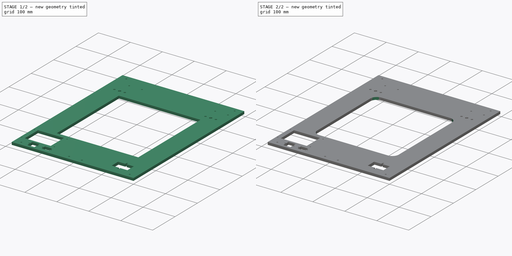
[diagram: build sequence overview — one tinted view per stage of 2, left to right]
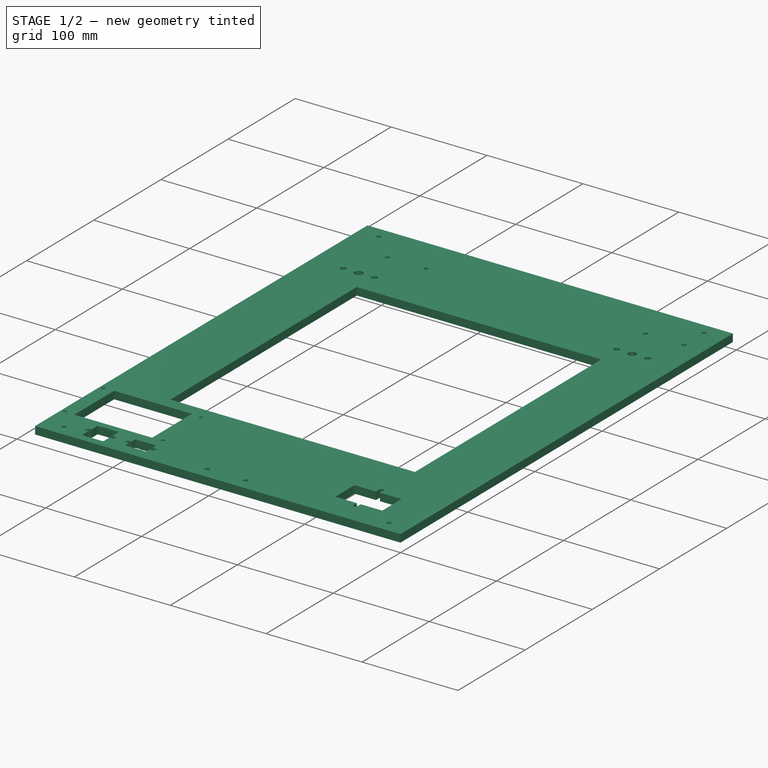
[diagram: stage 1 of 2 — iso view after this stage's code; geometry added in this stage tinted green]
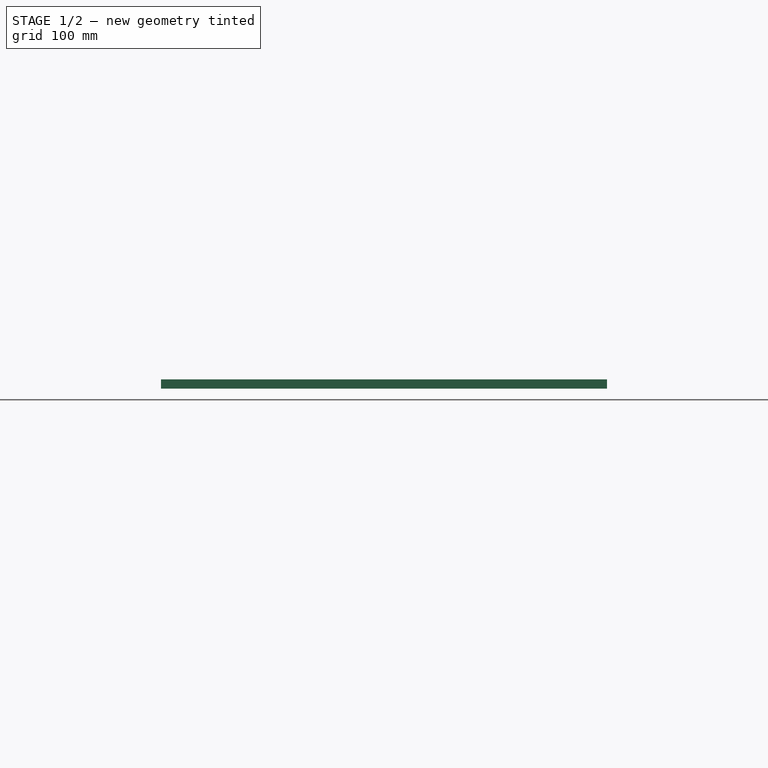
[diagram: stage 1 of 2 — front view after this stage's code; geometry added in this stage tinted green]
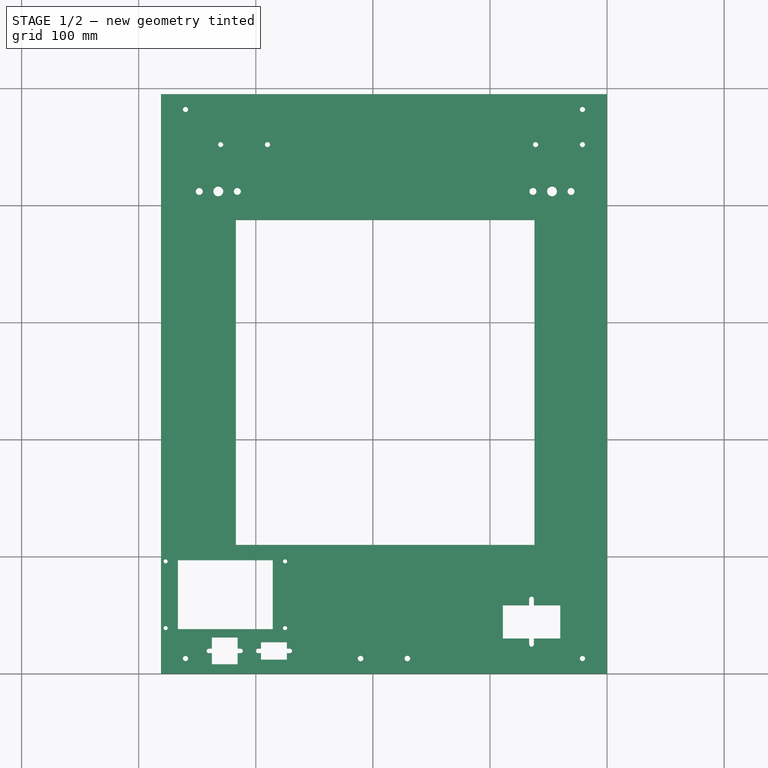
[diagram: stage 1 of 2 — top view after this stage's code; geometry added in this stage tinted green]
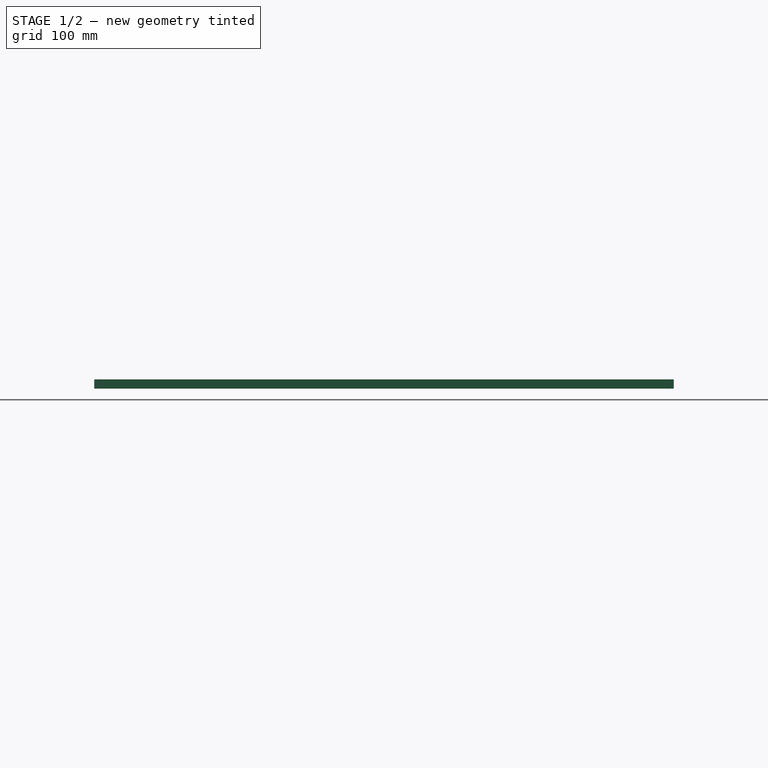
[diagram: stage 1 of 2 — right view after this stage's code; geometry added in this stage tinted green]
FCSTD DOCUMENT  (FreeCAD 0.16R6706 (Git))
Label: Frente
License: All rights reserved
LicenseURL: http://en.wikipedia.org/wiki/All_rights_reserved
objects: Path::FeaturePython×28, Sketcher::SketchObject×1, PartDesign::Pad×1, PartDesign::Fillet×1, Path::FeatureCompoundPython×1
note: 4 computed .brp shape members not serialized (recipe doc carries the construction recipe); baked Part::Feature solids carry a one-line shape summary decoded from their .brp

FEATURE [Sketcher::SketchObject] Sketch
  sketch-geometry (91):
    g0: LineSegment StartX=-381 StartY=495 StartZ=0 EndX=0 EndY=495 EndZ=0
    g1: LineSegment StartX=0 StartY=495 StartZ=0 EndX=0 EndY=0 EndZ=0
    g2: LineSegment StartX=-381 StartY=0 StartZ=0 EndX=-381 EndY=495 EndZ=0
    g3: LineSegment [constr] StartX=-332 StartY=452 StartZ=0 EndX=-332 EndY=412 EndZ=0
    g4: LineSegment [constr] StartX=-348.25 StartY=412 StartZ=0 EndX=-315.75 EndY=412 EndZ=0
    g5: Circle CenterX=-348.25 CenterY=412 CenterZ=0 NormalX=0 NormalY=0 NormalZ=1 Radius=3
    g6: Circle CenterX=-315.75 CenterY=412 CenterZ=0 NormalX=0 NormalY=0 NormalZ=1 Radius=3
    g7: Circle CenterX=-332 CenterY=412 CenterZ=0 NormalX=0 NormalY=0 NormalZ=1 Radius=4.2
    g8: LineSegment [constr] StartX=-332 StartY=412 StartZ=0 EndX=-47 EndY=412 EndZ=0
    g9: LineSegment [constr] StartX=-63.25 StartY=412 StartZ=0 EndX=-30.75 EndY=412 EndZ=0
    g10: Circle CenterX=-63.25 CenterY=412 CenterZ=0 NormalX=0 NormalY=0 NormalZ=1 Radius=3
    g11: Circle CenterX=-30.75 CenterY=412 CenterZ=0 NormalX=0 NormalY=0 NormalZ=1 Radius=3
    g12: Circle CenterX=-47 CenterY=412 CenterZ=0 NormalX=0 NormalY=0 NormalZ=1 Radius=4.2
    g13: LineSegment [constr] StartX=-330 StartY=452 StartZ=0 EndX=-290 EndY=452 EndZ=0
    g14: Circle CenterX=-330 CenterY=452 CenterZ=0 NormalX=0 NormalY=0 NormalZ=1 Radius=2.2
    g15: Circle CenterX=-290 CenterY=452 CenterZ=0 NormalX=0 NormalY=0 NormalZ=1 Radius=2.2
    g16: LineSegment [constr] StartX=-61 StartY=452 StartZ=0 EndX=-21 EndY=452 EndZ=0
    g17: Circle CenterX=-61 CenterY=452 CenterZ=0 NormalX=0 NormalY=0 NormalZ=1 Radius=2.2
    g18: Circle CenterX=-21 CenterY=452 CenterZ=0 NormalX=0 NormalY=0 NormalZ=1 Radius=2.2
    g19: Circle CenterX=-21 CenterY=482 CenterZ=0 NormalX=0 NormalY=0 NormalZ=1 Radius=2.25
    g20: LineSegment StartX=-317 StartY=387.586 StartZ=0 EndX=-62 EndY=387.586 EndZ=0
    g21: LineSegment StartX=-62 StartY=387.586 StartZ=0 EndX=-62 EndY=110 EndZ=0
    g22: LineSegment StartX=-62 StartY=110 StartZ=0 EndX=-317 EndY=110 EndZ=0
    g23: LineSegment StartX=-317 StartY=110 StartZ=0 EndX=-317 EndY=387.586 EndZ=0
    g24: LineSegment [constr] StartX=-360 StartY=482 StartZ=0 EndX=-21 EndY=482 EndZ=0
    g25: LineSegment [constr] StartX=-21 StartY=482 StartZ=0 EndX=-21 EndY=13 EndZ=0
    g26: LineSegment [constr] StartX=-21 StartY=13 StartZ=0 EndX=-360 EndY=13 EndZ=0
    g27: LineSegment [constr] StartX=-360 StartY=13 StartZ=0 EndX=-360 EndY=482 EndZ=0
    g28: Circle CenterX=-360 CenterY=482 CenterZ=0 NormalX=0 NormalY=0 NormalZ=1 Radius=2.25
    g29: Circle CenterX=-21 CenterY=13 CenterZ=0 NormalX=0 NormalY=0 NormalZ=1 Radius=2.25
    g30: Circle CenterX=-360 CenterY=13 CenterZ=0 NormalX=0 NormalY=0 NormalZ=1 Radius=2.25
    g31: LineSegment [constr] StartX=-381 StartY=100 StartZ=0 EndX=-271 EndY=100 EndZ=0
    g32: LineSegment [constr] StartX=-271 StartY=100 StartZ=0 EndX=-271 EndY=35 EndZ=0
    g33: LineSegment [constr] StartX=-271 StartY=35 StartZ=0 EndX=-381 EndY=35 EndZ=0
    g34: LineSegment [constr] StartX=-381 StartY=35 StartZ=0 EndX=-381 EndY=100 EndZ=0
    g35: GeomPoint [constr] X=-326 Y=67.5 Z=0
    g36: LineSegment [constr] StartX=-377 StartY=96 StartZ=0 EndX=-275 EndY=96 EndZ=0
    g37: LineSegment [constr] StartX=-275 StartY=96 StartZ=0 EndX=-275 EndY=39 EndZ=0
    g38: LineSegment [constr] StartX=-275 StartY=39 StartZ=0 EndX=-377 EndY=39 EndZ=0
    g39: LineSegment [constr] StartX=-377 StartY=39 StartZ=0 EndX=-377 EndY=96 EndZ=0
    g40: Circle CenterX=-377 CenterY=96 CenterZ=0 NormalX=0 NormalY=0 NormalZ=1 Radius=1.8
    g41: Circle CenterX=-275 CenterY=96 CenterZ=0 NormalX=0 NormalY=0 NormalZ=1 Radius=1.8
    g42: Circle CenterX=-275 CenterY=39 CenterZ=0 NormalX=0 NormalY=0 NormalZ=1 Radius=1.8
    g43: Circle CenterX=-377 CenterY=39 CenterZ=0 NormalX=0 NormalY=0 NormalZ=1 Radius=1.8
    g44: LineSegment StartX=-366.5 StartY=97 StartZ=0 EndX=-285.5 EndY=97 EndZ=0
    g45: LineSegment StartX=-285.5 StartY=97 StartZ=0 EndX=-285.5 EndY=38 EndZ=0
    g46: LineSegment StartX=-285.5 StartY=38 StartZ=0 EndX=-366.5 EndY=38 EndZ=0
    g47: LineSegment StartX=-366.5 StartY=38 StartZ=0 EndX=-366.5 EndY=97 EndZ=0
    g48: LineSegment StartX=0 StartY=0 StartZ=0 EndX=-381 EndY=0 EndZ=0
    g49: LineSegment StartX=-337.5 StartY=31 StartZ=0 EndX=-315.5 EndY=31 EndZ=0
    g50: LineSegment StartX=-315.5 StartY=31 StartZ=0 EndX=-315.5 EndY=21.5 EndZ=0
    g51: LineSegment StartX=-315.5 StartY=8 StartZ=0 EndX=-337.5 EndY=8 EndZ=0
    g52: LineSegment StartX=-337.5 StartY=8 StartZ=0 EndX=-337.5 EndY=17.5 EndZ=0
    g53: LineSegment [constr] StartX=-340 StartY=19.5 StartZ=0 EndX=-313 EndY=19.5 EndZ=0
    g54: GeomPoint [constr] X=-326.5 Y=19.5 Z=0
    g55: LineSegment StartX=-295.5 StartY=27 StartZ=0 EndX=-273.5 EndY=27 EndZ=0
    g56: LineSegment StartX=-273.5 StartY=27 StartZ=0 EndX=-273.5 EndY=21.5 EndZ=0
    g57: LineSegment StartX=-273.5 StartY=12 StartZ=0 EndX=-295.5 EndY=12 EndZ=0
    g58: LineSegment StartX=-295.5 StartY=12 StartZ=0 EndX=-295.5 EndY=17.5 EndZ=0
    g59: GeomPoint [constr] X=-284.5 Y=19.5 Z=0
    g60: LineSegment [constr] StartX=-298 StartY=19.5 StartZ=0 EndX=-271 EndY=19.5 EndZ=0
    g61: LineSegment StartX=-89 StartY=58.5 StartZ=0 EndX=-66.5 EndY=58.5 EndZ=0
    g62: LineSegment StartX=-40 StartY=58.5 StartZ=0 EndX=-40 EndY=30 EndZ=0
    g63: LineSegment StartX=-40 StartY=30 StartZ=0 EndX=-62.5 EndY=30 EndZ=0
    g64: LineSegment StartX=-89 StartY=30 StartZ=0 EndX=-89 EndY=58.5 EndZ=0
    g65: ArcOfCircle CenterX=-64.5 CenterY=64 CenterZ=0 NormalX=0 NormalY=0 NormalZ=1 Radius=2 StartAngle=0 EndAngle=3.14159
    g66: ArcOfCircle CenterX=-64.5 CenterY=25 CenterZ=0 NormalX=0 NormalY=0 NormalZ=1 Radius=2 StartAngle=3.14159 EndAngle=6.28319
    g67: LineSegment StartX=-66.5 StartY=64 StartZ=0 EndX=-66.5 EndY=58.5 EndZ=0
    g68: LineSegment StartX=-62.5 StartY=64 StartZ=0 EndX=-62.5 EndY=58.5 EndZ=0
    g69: LineSegment StartX=-62.5 StartY=58.5 StartZ=0 EndX=-40 EndY=58.5 EndZ=0
    g70: LineSegment StartX=-66.5 StartY=30 StartZ=0 EndX=-89 EndY=30 EndZ=0
    g71: LineSegment StartX=-66.5 StartY=30 StartZ=0 EndX=-66.5 EndY=25 EndZ=0
    g72: LineSegment StartX=-62.5 StartY=30 StartZ=0 EndX=-62.5 EndY=25 EndZ=0
    g73: ArcOfCircle CenterX=-340 CenterY=19.5 CenterZ=0 NormalX=0 NormalY=0 NormalZ=1 Radius=2 StartAngle=1.5708 EndAngle=4.71239
    g74: ArcOfCircle CenterX=-313 CenterY=19.5 CenterZ=0 NormalX=0 NormalY=0 NormalZ=1 Radius=2 StartAngle=4.71239 EndAngle=7.85398
    g75: LineSegment StartX=-340 StartY=17.5 StartZ=0 EndX=-337.5 EndY=17.5 EndZ=0
    g76: LineSegment StartX=-340 StartY=21.5 StartZ=0 EndX=-337.5 EndY=21.5 EndZ=0
    g77: LineSegment StartX=-337.5 StartY=21.5 StartZ=0 EndX=-337.5 EndY=31 EndZ=0
    g78: LineSegment StartX=-315.5 StartY=17.5 StartZ=0 EndX=-315.5 EndY=8 EndZ=0
    g79: LineSegment StartX=-315.5 StartY=21.5 StartZ=0 EndX=-313 EndY=21.5 EndZ=0
    g80: LineSegment StartX=-315.5 StartY=17.5 StartZ=0 EndX=-313 EndY=17.5 EndZ=0
    g81: ArcOfCircle CenterX=-298 CenterY=19.5 CenterZ=0 NormalX=0 NormalY=0 NormalZ=1 Radius=2 StartAngle=1.5708 EndAngle=4.71239
    g82: ArcOfCircle CenterX=-271 CenterY=19.5 CenterZ=0 NormalX=0 NormalY=0 NormalZ=1 Radius=2 StartAngle=4.71239 EndAngle=7.85398
    g83: LineSegment StartX=-298 StartY=17.5 StartZ=0 EndX=-295.5 EndY=17.5 EndZ=0
    g84: LineSegment StartX=-298 StartY=21.5 StartZ=0 EndX=-295.5 EndY=21.5 EndZ=0
    g85: LineSegment StartX=-295.5 StartY=21.5 StartZ=0 EndX=-295.5 EndY=27 EndZ=0
    g86: LineSegment StartX=-273.5 StartY=21.5 StartZ=0 EndX=-271 EndY=21.5 EndZ=0
    g87: LineSegment StartX=-273.5 StartY=17.5 StartZ=0 EndX=-271 EndY=17.5 EndZ=0
    g88: LineSegment StartX=-273.5 StartY=17.5 StartZ=0 EndX=-273.5 EndY=12 EndZ=0
    g89: Circle CenterX=-210.5 CenterY=13 CenterZ=0 NormalX=0 NormalY=0 NormalZ=1 Radius=2.4
    g90: Circle CenterX=-170.5 CenterY=13 CenterZ=0 NormalX=0 NormalY=0 NormalZ=1 Radius=2.4
  constraints (231):
    c: Coincident(g0,g1)
    c: Coincident(g2,g0)
    c: Horizontal(g0)
    c: Vertical(g1)
    c: Vertical(g2)
    c: DistanceY(g1,g1) = 495
    c: Vertical(g3)
    c: DistanceY(g3,g3) = 40
    c: Horizontal(g4)
    c: DistanceX(g4,g4) = 32.5
    c: Radius(g5) = 3
    c: Equal(g5,g6) = 3
    c: Coincident(g4,g6)
    c: Coincident(g5,g4)
    c: Radius(g7) = 4.2
    c: Symmetric(g4,g4,g7)
    c: Coincident(g3,g7)
    c: Horizontal(g8)
    c: DistanceX(g8,g8) = 285
    c: Coincident(g3,g8)
    c: Horizontal(g9)
    c: Equal(g4,g9) = 32.5
    c: Equal(g5,g10) = 3
    c: Equal(g10,g11) = 3
    c: Coincident(g9,g11)
    c: Coincident(g10,g9)
    c: Equal(g7,g12) = 4.2
    c: Symmetric(g9,g9,g12)
    c: Horizontal(g13)
    c: PointOnObject(g3,g13)
    c: Radius(g14) = 2.2
    c: Equal(g14,g15) = 2.2
    c: Coincident(g13,g14)
    c: Coincident(g2,g48)
    c: Horizontal(g16)
    c: Equal(g13,g16) = 40
    c: Equal(g14,g17) = 2.2
    c: Equal(g17,g18) = 2.2
    c: Coincident(g16,g17)
    c: Coincident(g16,g18)
    c: Coincident(g12,g8)
    c: PointOnObject(g2,g-1)
    c: Coincident(g1,g-1)
    c: Radius(g19) = 2.25
    c: Coincident(g20,g21)
    c: Coincident(g21,g22)
    c: Coincident(g22,g23)
    c: Coincident(g23,g20)
    c: Horizontal(g20)
    c: Horizontal(g22)
    c: Vertical(g21)
    c: Vertical(g23)
    c: PointOnObject(g16,g13)
    c: Coincident(g24,g25)
    c: Coincident(g25,g26)
    c: Coincident(g26,g27)
    c: Coincident(g27,g24)
    c: Horizontal(g24)
    c: Horizontal(g26)
    c: Vertical(g25)
    c: Vertical(g27)
    c: Coincident(g24,g19)
    c: DistanceX(g19,g0) = 21
    c: DistanceX(g24,g24) = 339
    c: DistanceX(g48,g1) = 381
    c: Equal(g19,g28) = 2.25
    c: Coincident(g24,g28)
    c: DistanceY(g19,g0) = 13
    c: DistanceX(g0,g24) = 21
    c: DistanceX(g0,g3) = 49
    c: Equal(g19,g29) = 2.25
    c: Equal(g19,g30) = 2.25
    c: Coincident(g26,g30)
    c: Coincident(g25,g29)
    c: DistanceY(g2,g26) = 13
    c: DistanceY(g13,g24) = 30
    c: DistanceX(g3,g13) = 42
    c: DistanceX(g16,g16) = 40
    c: DistanceX(g20,g8) = 15
    c: DistanceX(g3,g20) = 15
    c: DistanceY(g2,g22) = 110
    c: Coincident(g31,g32)
    c: Coincident(g32,g33)
    c: Coincident(g33,g34)
    c: Coincident(g34,g31)
    c: Horizontal(g31)
    c: Horizontal(g33)
    c: Vertical(g32)
    c: Vertical(g34)
    c: DistanceX(g31,g31) = 110
    c: DistanceY(g32,g32) = 65
    c: Symmetric(g31,g33,g35)
    c: Coincident(g36,g37)
    c: Coincident(g37,g38)
    c: Coincident(g38,g39)
    c: Coincident(g39,g36)
    c: Horizontal(g36)
    c: Horizontal(g38)
    c: Vertical(g37)
    c: Vertical(g39)
    c: DistanceX(g36,g36) = 102
    c: DistanceY(g37,g37) = 57
    c: Symmetric(g38,g36,g35)
    c: Radius(g40) = 1.8
    c: Equal(g40,g41) = 1.8
    c: Equal(g40,g42) = 1.8
    c: Equal(g40,g43) = 1.8
    c: Coincident(g36,g40)
    c: Coincident(g38,g43)
    c: Coincident(g37,g42)
    c: Coincident(g36,g41)
    c: Coincident(g44,g45)
    c: Coincident(g45,g46)
    c: Coincident(g46,g47)
    c: Coincident(g47,g44)
    c: Horizontal(g44)
    c: Horizontal(g46)
    c: Vertical(g45)
    c: Vertical(g47)
    c: DistanceX(g44,g44) = 81
    c: DistanceY(g45,g44) = 59
    c: Symmetric(g44,g46,g35)
    c: PointOnObject(g33,g2)
    c: DistanceY(g2,g33) = 35
    c: Coincident(g-1,g48)
    c: Coincident(g49,g50)
    c: Coincident(g78,g51)
    c: Coincident(g51,g52)
    c: Coincident(g77,g49)
    c: Horizontal(g49)
    c: Horizontal(g51)
    c: Vertical(g50)
    c: Vertical(g52)
    c: DistanceX(g49,g49) = 22
    c: Horizontal(g53)
    c: DistanceX(g53,g53) = 27
    c: Symmetric(g49,g78,g54)
    c: Symmetric(g53,g53,g54)
    c: DistanceY(g52,g77) = 23
    c: Coincident(g55,g56)
    c: Coincident(g88,g57)
    c: Coincident(g57,g58)
    c: Coincident(g85,g55)
    c: Horizontal(g55)
    c: Horizontal(g57)
    c: Vertical(g56)
    c: Vertical(g58)
    c: DistanceY(g58,g85) = 15
    c: DistanceX(g55,g55) = 22
    c: Symmetric(g57,g55,g59)
    c: Horizontal(g60)
    c: Equal(g53,g60) = 27
    c: Symmetric(g60,g60,g59)
    c: PointOnObject(g60,g53)
    c: DistanceX(g53,g60) = 15
    c: PointOnObject(g60,g32)
    c: Coincident(g69,g62)
    c: Coincident(g62,g63)
    c: Coincident(g70,g64)
    c: Coincident(g64,g61)
    c: Horizontal(g61)
    c: Horizontal(g63)
    c: Vertical(g62)
    c: Vertical(g64)
    c: DistanceX(g61,g69) = 49
    c: DistanceY(g64,g64) = 28.5
    c: DistanceX(g62,g-1) = 40
    c: DistanceY(g-1,g62) = 30
    c: DistanceX(g8,g0) = 47
    c: DistanceX(g8,g16) = 26
    c: Tangent(g65,g68) = 1.5708
    c: Tangent(g65,g67) = -1.5708
    c: Tangent(g71,g66) = -1.5708
    c: Tangent(g72,g66) = 1.5708
    c: Vertical(g67)
    c: Equal(g65,g66)
    c: DistanceY(g72,g68) = 39
    c: DistanceX(g65,g65) = 4
    c: DistanceX(g65,g69) = 22.5
    c: DistanceY(g69,g65) = 5.5
    c: Tangent(g61,g69)
    c: Tangent(g63,g70)
    c: Coincident(g67,g61)
    c: Coincident(g71,g70)
    c: Tangent(g67,g71)
    c: Coincident(g68,g69)
    c: Coincident(g72,g63)
    c: Tangent(g68,g72)
    c: DistanceY(g51,g26) = 5
    c: Tangent(g73,g76) = 1.5708
    c: Tangent(g73,g75) = -1.5708
    c: Tangent(g80,g74) = -1.5708
    c: Tangent(g79,g74) = 1.5708
    c: Horizontal(g75)
    c: Equal(g73,g74)
    c: DistanceY(g74,g74) = 4
    c: Coincident(g53,g74)
    c: Coincident(g73,g53)
    c: Tangent(g52,g77)
    c: Tangent(g50,g78)
    c: Coincident(g76,g77)
    c: Coincident(g79,g50)
    c: Tangent(g76,g79)
    c: Coincident(g75,g52)
    c: Coincident(g80,g78)
    c: Tangent(g75,g80)
    c: Tangent(g81,g84) = 1.5708
    c: Tangent(g81,g83) = -1.5708
    c: Tangent(g87,g82) = -1.5708
    c: Tangent(g86,g82) = 1.5708
    c: Horizontal(g83)
    c: Equal(g81,g82)
    c: DistanceY(g82,g82) = 4
    c: Coincident(g82,g60)
    c: Coincident(g60,g81)
    c: Tangent(g58,g85)
    c: Coincident(g84,g85)
    c: Tangent(g84,g86)
    c: Coincident(g83,g58)
    c: PointOnObject(g87,g56)
    c: Tangent(g83,g87)
    c: Coincident(g56,g86)
    c: Tangent(g56,g88)
    c: PointOnObject(g88,g87)
    c: Radius(g89) = 2.4
    c: DistanceX(g26,g89) = 149.5
    c: PointOnObject(g89,g26)
    c: Equal(g89,g90) = 2.4
    c: PointOnObject(g90,g26)
    c: DistanceX(g89,g90) = 40
    c: Coincident(g13,g15)
FEATURE [PartDesign::Pad] Pad
  Length = 8
  Length2 = 100
  Sketch = -> Sketch
  Type = 0
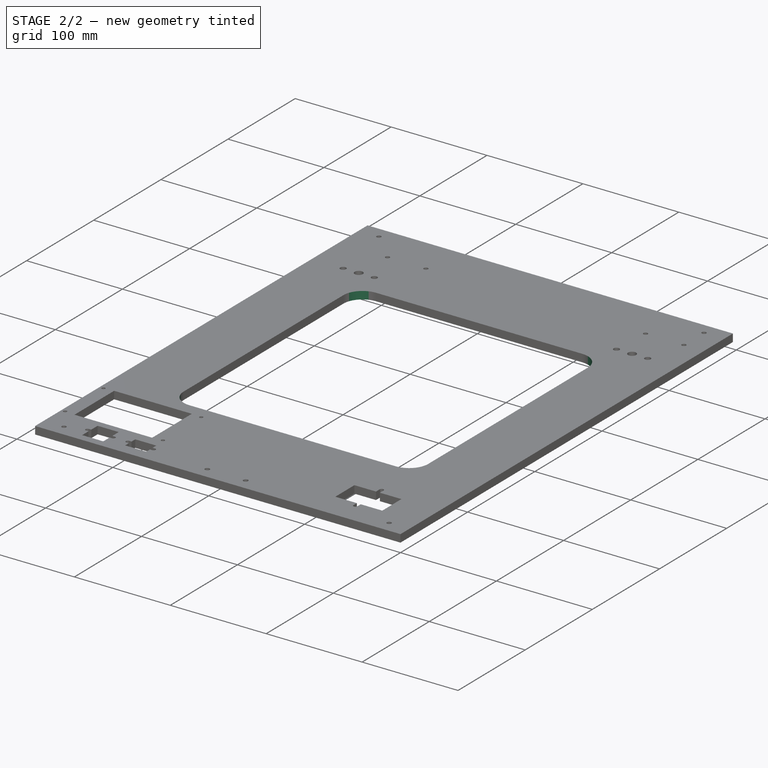
[diagram: stage 2 of 2 — iso view after this stage's code; geometry added in this stage tinted green]
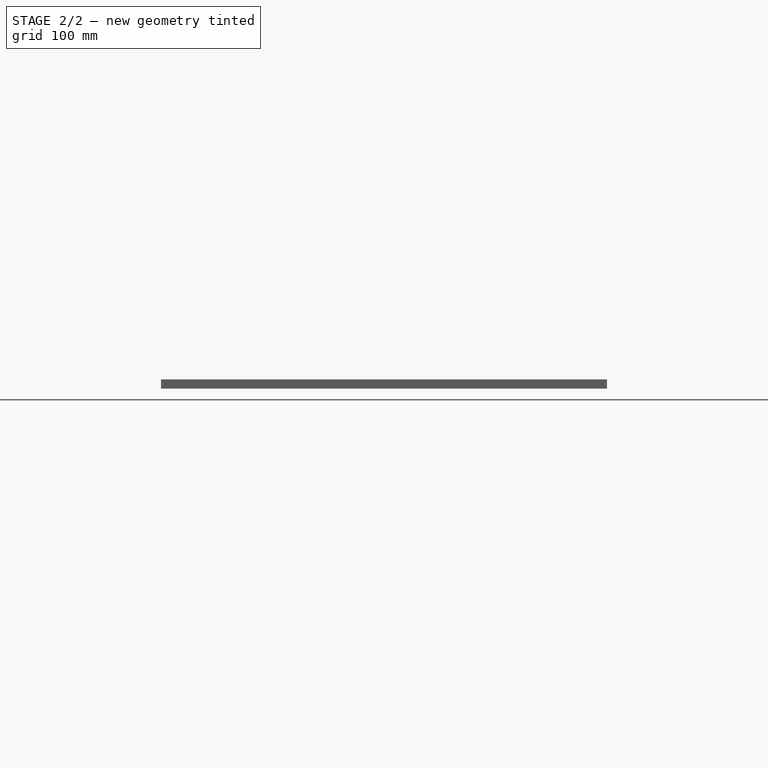
[diagram: stage 2 of 2 — front view after this stage's code; geometry added in this stage tinted green]
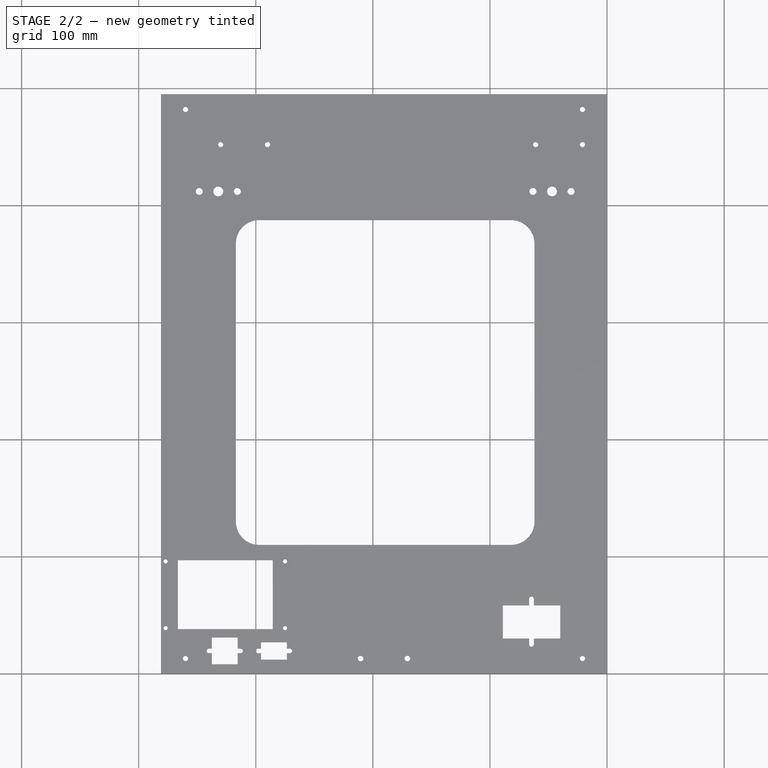
[diagram: stage 2 of 2 — top view after this stage's code; geometry added in this stage tinted green]
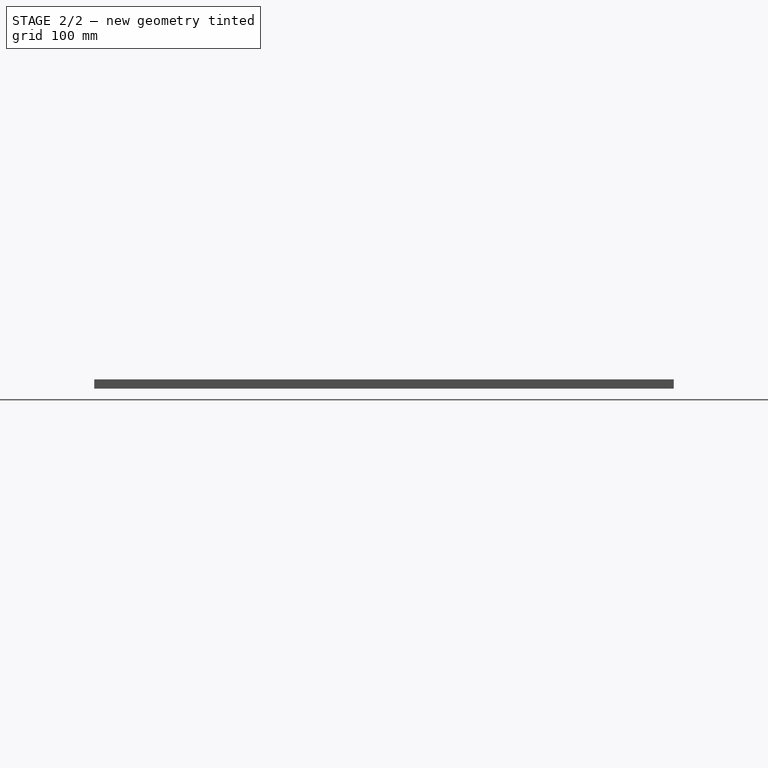
[diagram: stage 2 of 2 — right view after this stage's code; geometry added in this stage tinted green]
FEATURE [PartDesign::Fillet] Fillet
  Base = -> Pad [Edge13,Edge14,Edge17,Edge20]
  Radius = 20
FEATURE [Path::FeaturePython] Machine  label="Machine_"  # Path/CAM operation (typed FeaturePython)
  MachineUnits = 0
  X = 0
  X_Max = 0
  X_Min = 0
  Y = 0
  Y_Max = 0
  Y_Min = 0
  Z = 0
  Z_Max = 0
  Z_Min = 0
FEATURE [Path::FeaturePython] Tool  label="Tool1"  # Path/CAM operation (typed FeaturePython)
  SpindleDir = 0
  SpindleSpeed = 0
  ToolNumber = 1
FEATURE [Path::FeaturePython] Profile  label="Cantoneira"  # Path/CAM operation (typed FeaturePython)
  Active = true
  Base = -> Sketch
  ClearanceHeight = 3
  Direction = 1
  Edge1 = -> Sketch [Edge20]
  EndPoint = (0,0,0)
  ExtendAtEnd = 0
  ExtendAtStart = 0
  FinalDepth = -8.2
  HorizFeed = 127
  LeadInLineLen = 0
  LeadOutLineLen = 0
  OffsetExtra = 0
  PathClosed = true
  RetractHeight = 0
  RollRadius = 0
  SegLen = 0.5
  Side = 1
  StartDepth = 0
  StartPoint = (0,0,0)
  StepDown = 3
  ToolNumber = 1
  UseEndPoint = false
  UsePlacements = false
  UseStartDepth = true
  UseStartPoint = false
  VertFeed = 127
FEATURE [Path::FeaturePython] Profile001  label="Cantoneira001"  # Path/CAM operation (typed FeaturePython)
  Active = true
  Base = -> Sketch
  ClearanceHeight = 3
  Direction = 1
  Edge1 = -> Sketch [Edge15]
  EndPoint = (0,0,0)
  ExtendAtEnd = 0
  ExtendAtStart = 0
  FinalDepth = -8.2
  HorizFeed = 127
  LeadInLineLen = 0
  LeadOutLineLen = 0
  OffsetExtra = 0
  PathClosed = true
  RetractHeight = 0
  RollRadius = 0
  SegLen = 0.5
  Side = 1
  StartDepth = 0
  StartPoint = (0,0,0)
  StepDown = 3
  ToolNumber = 1
  UseEndPoint = false
  UsePlacements = false
  UseStartDepth = true
  UseStartPoint = false
  VertFeed = 127
FEATURE [Path::FeaturePython] Profile002  label="Cantoneira002"  # Path/CAM operation (typed FeaturePython)
  Active = true
  Base = -> Sketch
  ClearanceHeight = 3
  Direction = 1
  Edge1 = -> Sketch [Edge22]
  EndPoint = (0,0,0)
  ExtendAtEnd = 0
  ExtendAtStart = 0
  FinalDepth = -8.2
  HorizFeed = 127
  LeadInLineLen = 0
  LeadOutLineLen = 0
  OffsetExtra = 0
  PathClosed = true
  RetractHeight = 0
  RollRadius = 0
  SegLen = 0.5
  Side = 1
  StartDepth = 0
  StartPoint = (0,0,0)
  StepDown = 3
  ToolNumber = 1
  UseEndPoint = false
  UsePlacements = false
  UseStartDepth = true
  UseStartPoint = false
  VertFeed = 127
FEATURE [Path::FeaturePython] Profile003  label="Cantoneira003"  # Path/CAM operation (typed FeaturePython)
  Active = true
  Base = -> Sketch
  ClearanceHeight = 3
  Direction = 1
  Edge1 = -> Sketch [Edge67]
  EndPoint = (0,0,0)
  ExtendAtEnd = 0
  ExtendAtStart = 0
  FinalDepth = -8.2
  HorizFeed = 127
  LeadInLineLen = 0
  LeadOutLineLen = 0
  OffsetExtra = 0
  PathClosed = true
  RetractHeight = 0
  RollRadius = 0
  SegLen = 0.5
  Side = 1
  StartDepth = 0
  StartPoint = (0,0,0)
  StepDown = 3
  ToolNumber = 1
  UseEndPoint = false
  UsePlacements = false
  UseStartDepth = true
  UseStartPoint = false
  VertFeed = 127
FEATURE [Path::FeaturePython] Profile004  label="Cantoneira004"  # Path/CAM operation (typed FeaturePython)
  Active = true
  Base = -> Sketch
  ClearanceHeight = 3
  Direction = 1
  Edge1 = -> Sketch [Edge68]
  EndPoint = (0,0,0)
  ExtendAtEnd = 0
  ExtendAtStart = 0
  FinalDepth = -8.2
  HorizFeed = 127
  LeadInLineLen = 0
  LeadOutLineLen = 0
  OffsetExtra = 0
  PathClosed = true
  RetractHeight = 0
  RollRadius = 0
  SegLen = 0.5
  Side = 1
  StartDepth = 0
  StartPoint = (0,0,0)
  StepDown = 3
  ToolNumber = 1
  UseEndPoint = false
  UsePlacements = false
  UseStartDepth = true
  UseStartPoint = false
  VertFeed = 127
FEATURE [Path::FeaturePython] Profile005  label="Cantoneira005"  # Path/CAM operation (typed FeaturePython)
  Active = true
  Base = -> Sketch
  ClearanceHeight = 3
  Direction = 1
  Edge1 = -> Sketch [Edge21]
  EndPoint = (0,0,0)
  ExtendAtEnd = 0
  ExtendAtStart = 0
  FinalDepth = -8.2
  HorizFeed = 127
  LeadInLineLen = 0
  LeadOutLineLen = 0
  OffsetExtra = 0
  PathClosed = true
  RetractHeight = 0
  RollRadius = 0
  SegLen = 0.5
  Side = 1
  StartDepth = 0
  StartPoint = (0,0,0)
  StepDown = 3
  ToolNumber = 1
  UseEndPoint = false
  UsePlacements = false
  UseStartDepth = true
  UseStartPoint = false
  VertFeed = 127
FEATURE [Path::FeaturePython] Profile006  label="Suporte Polia"  # Path/CAM operation (typed FeaturePython)
  Active = true
  Base = -> Sketch
  ClearanceHeight = 3
  Direction = 1
  Edge1 = -> Sketch [Edge11]
  EndPoint = (0,0,0)
  ExtendAtEnd = 0
  ExtendAtStart = 0
  FinalDepth = -8.2
  HorizFeed = 127
  LeadInLineLen = 0
  LeadOutLineLen = 0
  OffsetExtra = 0
  PathClosed = true
  RetractHeight = 0
  RollRadius = 0
  SegLen = 0.5
  Side = 1
  StartDepth = 0
  StartPoint = (0,0,0)
  StepDown = 3
  ToolNumber = 1
  UseEndPoint = false
  UsePlacements = false
  UseStartDepth = true
  UseStartPoint = false
  VertFeed = 127
FEATURE [Path::FeaturePython] Profile007  label="Suporte Polia001"  # Path/CAM operation (typed FeaturePython)
  Active = true
  Base = -> Sketch
  ClearanceHeight = 3
  Direction = 1
  Edge1 = -> Sketch [Edge12]
  EndPoint = (0,0,0)
  ExtendAtEnd = 0
  ExtendAtStart = 0
  FinalDepth = -8.2
  HorizFeed = 127
  LeadInLineLen = 0
  LeadOutLineLen = 0
  OffsetExtra = 0
  PathClosed = true
  RetractHeight = 0
  RollRadius = 0
  SegLen = 0.5
  Side = 1
  StartDepth = 0
  StartPoint = (0,0,0)
  StepDown = 3
  ToolNumber = 1
  UseEndPoint = false
  UsePlacements = false
  UseStartDepth = true
  UseStartPoint = false
  VertFeed = 127
FEATURE [Path::FeaturePython] Profile008  label="Suporte Polia002"  # Path/CAM operation (typed FeaturePython)
  Active = true
  Base = -> Sketch
  ClearanceHeight = 3
  Direction = 1
  Edge1 = -> Sketch [Edge13]
  EndPoint = (0,0,0)
  ExtendAtEnd = 0
  ExtendAtStart = 0
  FinalDepth = -8.2
  HorizFeed = 127
  LeadInLineLen = 0
  LeadOutLineLen = 0
  OffsetExtra = 0
  PathClosed = true
  RetractHeight = 0
  RollRadius = 0
  SegLen = 0.5
  Side = 1
  StartDepth = 0
  StartPoint = (0,0,0)
  StepDown = 3
  ToolNumber = 1
  UseEndPoint = false
  UsePlacements = false
  UseStartDepth = true
  UseStartPoint = false
  VertFeed = 127
FEATURE [Path::FeaturePython] Profile009  label="Suporte Polia003"  # Path/CAM operation (typed FeaturePython)
  Active = true
  Base = -> Sketch
  ClearanceHeight = 3
  Direction = 1
  Edge1 = -> Sketch [Edge14]
  EndPoint = (0,0,0)
  ExtendAtEnd = 0
  ExtendAtStart = 0
  FinalDepth = -8.2
  HorizFeed = 127
  LeadInLineLen = 0
  LeadOutLineLen = 0
  OffsetExtra = 0
  PathClosed = true
  RetractHeight = 0
  RollRadius = 0
  SegLen = 0.5
  Side = 1
  StartDepth = 0
  StartPoint = (0,0,0)
  StepDown = 3
  ToolNumber = 1
  UseEndPoint = false
  UsePlacements = false
  UseStartDepth = true
  UseStartPoint = false
  VertFeed = 127
FEATURE [Path::FeaturePython] Profile010  label="Suporte Haste"  # Path/CAM operation (typed FeaturePython)
  Active = true
  Base = -> Sketch
  ClearanceHeight = 3
  Direction = 1
  Edge1 = -> Sketch [Edge9]
  EndPoint = (0,0,0)
  ExtendAtEnd = 0
  ExtendAtStart = 0
  FinalDepth = -8.2
  HorizFeed = 127
  LeadInLineLen = 0
  LeadOutLineLen = 0
  OffsetExtra = 0
  PathClosed = true
  RetractHeight = 0
  RollRadius = 0
  SegLen = 0.5
  Side = 1
  StartDepth = 0
  StartPoint = (0,0,0)
  StepDown = 3
  ToolNumber = 1
  UseEndPoint = false
  UsePlacements = false
  UseStartDepth = true
  UseStartPoint = false
  VertFeed = 127
FEATURE [Path::FeaturePython] Profile011  label="Suporte Haste001"  # Path/CAM operation (typed FeaturePython)
  Active = true
  Base = -> Sketch
  ClearanceHeight = 3
  Direction = 1
  Edge1 = -> Sketch [Edge10]
  EndPoint = (0,0,0)
  ExtendAtEnd = 0
  ExtendAtStart = 0
  FinalDepth = -8.2
  HorizFeed = 127
  LeadInLineLen = 0
  LeadOutLineLen = 0
  OffsetExtra = 0
  PathClosed = true
  RetractHeight = 0
  RollRadius = 0
  SegLen = 0.5
  Side = 1
  StartDepth = 0
  StartPoint = (0,0,0)
  StepDown = 3
  ToolNumber = 1
  UseEndPoint = false
  UsePlacements = false
  UseStartDepth = true
  UseStartPoint = false
  VertFeed = 127
FEATURE [Path::FeaturePython] Profile012  label="Suporte Haste002"  # Path/CAM operation (typed FeaturePython)
  Active = true
  Base = -> Sketch
  ClearanceHeight = 3
  Direction = 1
  Edge1 = -> Sketch [Edge8]
  EndPoint = (0,0,0)
  ExtendAtEnd = 0
  ExtendAtStart = 0
  FinalDepth = -8.2
  HorizFeed = 127
  LeadInLineLen = 0
  LeadOutLineLen = 0
  OffsetExtra = 0
  PathClosed = true
  RetractHeight = 0
  RollRadius = 0
  SegLen = 0.5
  Side = 1
  StartDepth = 0
  StartPoint = (0,0,0)
  StepDown = 3
  ToolNumber = 1
  UseEndPoint = false
  UsePlacements = false
  UseStartDepth = true
  UseStartPoint = false
  VertFeed = 127
FEATURE [Path::FeaturePython] Profile013  label="Suporte Haste003"  # Path/CAM operation (typed FeaturePython)
  Active = true
  Base = -> Sketch
  ClearanceHeight = 3
  Direction = 1
  Edge1 = -> Sketch [Edge6]
  EndPoint = (0,0,0)
  ExtendAtEnd = 0
  ExtendAtStart = 0
  FinalDepth = -8.2
  HorizFeed = 127
  LeadInLineLen = 0
  LeadOutLineLen = 0
  OffsetExtra = 0
  PathClosed = true
  RetractHeight = 0
  RollRadius = 0
  SegLen = 0.5
  Side = 1
  StartDepth = 0
  StartPoint = (0,0,0)
  StepDown = 3
  ToolNumber = 1
  UseEndPoint = false
  UsePlacements = false
  UseStartDepth = true
  UseStartPoint = false
  VertFeed = 127
FEATURE [Path::FeaturePython] Profile014  label="Suporte Haste004"  # Path/CAM operation (typed FeaturePython)
  Active = true
  Base = -> Sketch
  ClearanceHeight = 3
  Direction = 1
  Edge1 = -> Sketch [Edge7]
  EndPoint = (0,0,0)
  ExtendAtEnd = 0
  ExtendAtStart = 0
  FinalDepth = -8.2
  HorizFeed = 127
  LeadInLineLen = 0
  LeadOutLineLen = 0
  OffsetExtra = 0
  PathClosed = true
  RetractHeight = 0
  RollRadius = 0
  SegLen = 0.5
  Side = 1
  StartDepth = 0
  StartPoint = (0,0,0)
  StepDown = 3
  ToolNumber = 1
  UseEndPoint = false
  UsePlacements = false
  UseStartDepth = true
  UseStartPoint = false
  VertFeed = 127
FEATURE [Path::FeaturePython] Profile015  label="Suporte Haste005"  # Path/CAM operation (typed FeaturePython)
  Active = true
  Base = -> Sketch
  ClearanceHeight = 3
  Direction = 1
  Edge1 = -> Sketch [Edge5]
  EndPoint = (0,0,0)
  ExtendAtEnd = 0
  ExtendAtStart = 0
  FinalDepth = -8.2
  HorizFeed = 127
  LeadInLineLen = 0
  LeadOutLineLen = 0
  OffsetExtra = 0
  PathClosed = true
  RetractHeight = 0
  RollRadius = 0
  SegLen = 0.5
  Side = 1
  StartDepth = 0
  StartPoint = (0,0,0)
  StepDown = 3
  ToolNumber = 1
  UseEndPoint = false
  UsePlacements = false
  UseStartDepth = true
  UseStartPoint = false
  VertFeed = 127
FEATURE [Path::FeaturePython] Profile016  label="Janela"  # Path/CAM operation (typed FeaturePython)
  Active = true
  Base = -> Sketch
  ClearanceHeight = 3
  Direction = 1
  Edge1 = -> Sketch [Edge16]
  Edge2 = -> Sketch [Edge17]
  EndPoint = (0,0,0)
  ExtendAtEnd = 0
  ExtendAtStart = 0
  FinalDepth = -8.2
  HorizFeed = 127
  LeadInLineLen = 0
  LeadOutLineLen = 0
  OffsetExtra = 0
  PathClosed = true
  RetractHeight = 0
  RollRadius = 0
  SegLen = 0.5
  Side = 1
  StartDepth = 0
  StartPoint = (0,0,0)
  StepDown = 3
  ToolNumber = 1
  UseEndPoint = false
  UsePlacements = false
  UseStartDepth = true
  UseStartPoint = false
  VertFeed = 127
FEATURE [Path::FeaturePython] Profile017  label="Tela"  # Path/CAM operation (typed FeaturePython)
  Active = true
  Base = -> Sketch
  ClearanceHeight = 3
  Direction = 1
  Edge1 = -> Sketch [Edge23]
  EndPoint = (0,0,0)
  ExtendAtEnd = 0
  ExtendAtStart = 0
  FinalDepth = -8.2
  HorizFeed = 127
  LeadInLineLen = 0
  LeadOutLineLen = 0
  OffsetExtra = 0
  PathClosed = true
  RetractHeight = 0
  RollRadius = 0
  SegLen = 0.5
  Side = 1
  StartDepth = 0
  StartPoint = (0,0,0)
  StepDown = 3
  ToolNumber = 1
  UseEndPoint = false
  UsePlacements = false
  UseStartDepth = true
  UseStartPoint = false
  VertFeed = 127
FEATURE [Path::FeaturePython] Profile018  label="Tela001"  # Path/CAM operation (typed FeaturePython)
  Active = true
  Base = -> Sketch
  ClearanceHeight = 3
  Direction = 1
  Edge1 = -> Sketch [Edge24]
  EndPoint = (0,0,0)
  ExtendAtEnd = 0
  ExtendAtStart = 0
  FinalDepth = -8.2
  HorizFeed = 127
  LeadInLineLen = 0
  LeadOutLineLen = 0
  OffsetExtra = 0
  PathClosed = true
  RetractHeight = 0
  RollRadius = 0
  SegLen = 0.5
  Side = 1
  StartDepth = 0
  StartPoint = (0,0,0)
  StepDown = 3
  ToolNumber = 1
  UseEndPoint = false
  UsePlacements = false
  UseStartDepth = true
  UseStartPoint = false
  VertFeed = 127
FEATURE [Path::FeaturePython] Profile019  label="Tela002"  # Path/CAM operation (typed FeaturePython)
  Active = true
  Base = -> Sketch
  ClearanceHeight = 3
  Direction = 1
  Edge1 = -> Sketch [Edge25]
  EndPoint = (0,0,0)
  ExtendAtEnd = 0
  ExtendAtStart = 0
  FinalDepth = -8.2
  HorizFeed = 127
  LeadInLineLen = 0
  LeadOutLineLen = 0
  OffsetExtra = 0
  PathClosed = true
  RetractHeight = 0
  RollRadius = 0
  SegLen = 0.5
  Side = 1
  StartDepth = 0
  StartPoint = (0,0,0)
  StepDown = 3
  ToolNumber = 1
  UseEndPoint = false
  UsePlacements = false
  UseStartDepth = true
  UseStartPoint = false
  VertFeed = 127
FEATURE [Path::FeaturePython] Profile020  label="Tela003"  # Path/CAM operation (typed FeaturePython)
  Active = true
  Base = -> Sketch
  ClearanceHeight = 3
  Direction = 1
  Edge1 = -> Sketch [Edge26]
  EndPoint = (0,0,0)
  ExtendAtEnd = 0
  ExtendAtStart = 0
  FinalDepth = -8.2
  HorizFeed = 127
  LeadInLineLen = 0
  LeadOutLineLen = 0
  OffsetExtra = 0
  PathClosed = true
  RetractHeight = 0
  RollRadius = 0
  SegLen = 0.5
  Side = 1
  StartDepth = 0
  StartPoint = (0,0,0)
  StepDown = 3
  ToolNumber = 1
  UseEndPoint = false
  UsePlacements = false
  UseStartDepth = true
  UseStartPoint = false
  VertFeed = 127
FEATURE [Path::FeaturePython] Profile021  label="Tela004"  # Path/CAM operation (typed FeaturePython)
  Active = true
  Base = -> Sketch
  ClearanceHeight = 3
  Direction = 1
  Edge1 = -> Sketch [Edge30]
  Edge2 = -> Sketch [Edge29]
  EndPoint = (0,0,0)
  ExtendAtEnd = 0
  ExtendAtStart = 0
  FinalDepth = -8.2
  HorizFeed = 127
  LeadInLineLen = 0
  LeadOutLineLen = 0
  OffsetExtra = 0
  PathClosed = true
  RetractHeight = 0
  RollRadius = 0
  SegLen = 0.5
  Side = 1
  StartDepth = 0
  StartPoint = (0,0,0)
  StepDown = 3
  ToolNumber = 1
  UseEndPoint = false
  UsePlacements = false
  UseStartDepth = true
  UseStartPoint = false
  VertFeed = 127
FEATURE [Path::FeaturePython] Profile022  label="Conectores"  # Path/CAM operation (typed FeaturePython)
  Active = true
  Base = -> Sketch
  ClearanceHeight = 3
  Direction = 1
  Edge1 = -> Sketch [Edge39]
  Edge2 = -> Sketch [Edge38]
  EndPoint = (0,0,0)
  ExtendAtEnd = 0
  ExtendAtStart = 0
  FinalDepth = -8.2
  HorizFeed = 127
  LeadInLineLen = 0
  LeadOutLineLen = 0
  OffsetExtra = 0
  PathClosed = true
  RetractHeight = 0
  RollRadius = 0
  SegLen = 0.5
  Side = 1
  StartDepth = 0
  StartPoint = (0,0,0)
  StepDown = 3
  ToolNumber = 1
  UseEndPoint = false
  UsePlacements = false
  UseStartDepth = true
  UseStartPoint = false
  VertFeed = 127
FEATURE [Path::FeaturePython] Profile023  label="Conectores001"  # Path/CAM operation (typed FeaturePython)
  Active = true
  Base = -> Sketch
  ClearanceHeight = 3
  Direction = 1
  Edge1 = -> Sketch [Edge53]
  Edge2 = -> Sketch [Edge52]
  EndPoint = (0,0,0)
  ExtendAtEnd = 0
  ExtendAtStart = 0
  FinalDepth = -8.2
  HorizFeed = 127
  LeadInLineLen = 0
  LeadOutLineLen = 0
  OffsetExtra = 0
  PathClosed = true
  RetractHeight = 0
  RollRadius = 0
  SegLen = 0.5
  Side = 1
  StartDepth = 0
  StartPoint = (0,0,0)
  StepDown = 3
  ToolNumber = 1
  UseEndPoint = false
  UsePlacements = false
  UseStartDepth = true
  UseStartPoint = false
  VertFeed = 127
FEATURE [Path::FeaturePython] Profile024  label="Tomada"  # Path/CAM operation (typed FeaturePython)
  Active = true
  Base = -> Sketch
  ClearanceHeight = 3
  Direction = 1
  Edge1 = -> Sketch [Edge56]
  Edge2 = -> Sketch [Edge55]
  EndPoint = (0,0,0)
  ExtendAtEnd = 0
  ExtendAtStart = 0
  FinalDepth = -8.2
  HorizFeed = 127
  LeadInLineLen = 0
  LeadOutLineLen = 0
  OffsetExtra = 0
  PathClosed = true
  RetractHeight = 0
  RollRadius = 0
  SegLen = 0.5
  Side = 1
  StartDepth = 0
  StartPoint = (0,0,0)
  StepDown = 3
  ToolNumber = 1
  UseEndPoint = false
  UsePlacements = false
  UseStartDepth = true
  UseStartPoint = false
  VertFeed = 127
FEATURE [Path::FeaturePython] Profile025  label="Externo"  # Path/CAM operation (typed FeaturePython)
  Active = true
  Base = -> Sketch
  ClearanceHeight = 3
  Direction = 0
  Edge1 = -> Sketch [Edge4]
  Edge2 = -> Sketch [Edge3]
  EndPoint = (0,0,0)
  ExtendAtEnd = 0
  ExtendAtStart = 0
  FinalDepth = -8.2
  HorizFeed = 127
  LeadInLineLen = 0
  LeadOutLineLen = 0
  OffsetExtra = 0
  PathClosed = true
  RetractHeight = 0
  RollRadius = 0
  SegLen = 0.5
  Side = 0
  StartDepth = 0
  StartPoint = (0,0,0)
  StepDown = 3
  ToolNumber = 1
  UseEndPoint = false
  UsePlacements = false
  UseStartDepth = true
  UseStartPoint = false
  VertFeed = 127
FEATURE [Path::FeatureCompoundPython] Project  # Path/CAM operation (typed FeaturePython)
  Group = -> [Machine,Tool,Profile,Profile001,Profile002,Profile003,Profile004,Profile005,Profile006,Profile007,Profile008,Profile009,Profile010,Profile011,Profile012,Profile013,Profile014,Profile015,Profile016,Profile017,Profile018,Profile019,Profile020,Profile021,Profile022,Profile023,Profile024,Profile025]
  UsePlacements = false
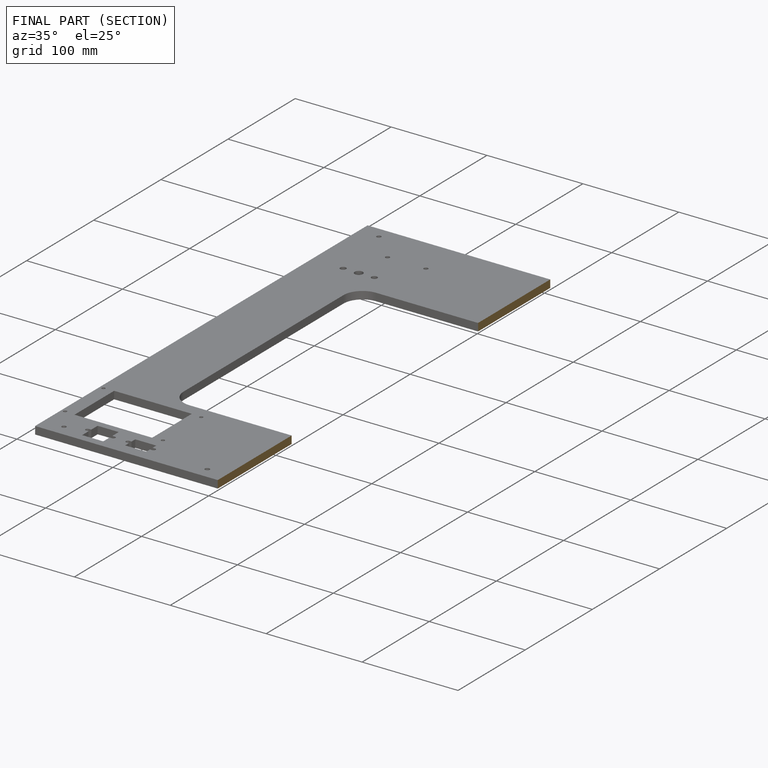
[diagram: finished part — half-section view (interior)]
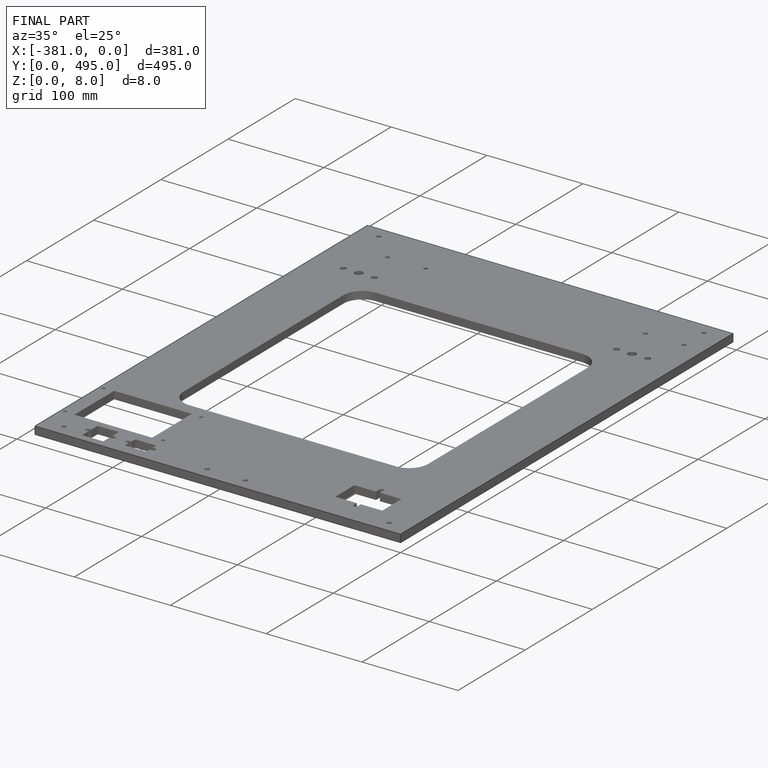
[diagram: finished part — iso view with bounding-box wireframe]
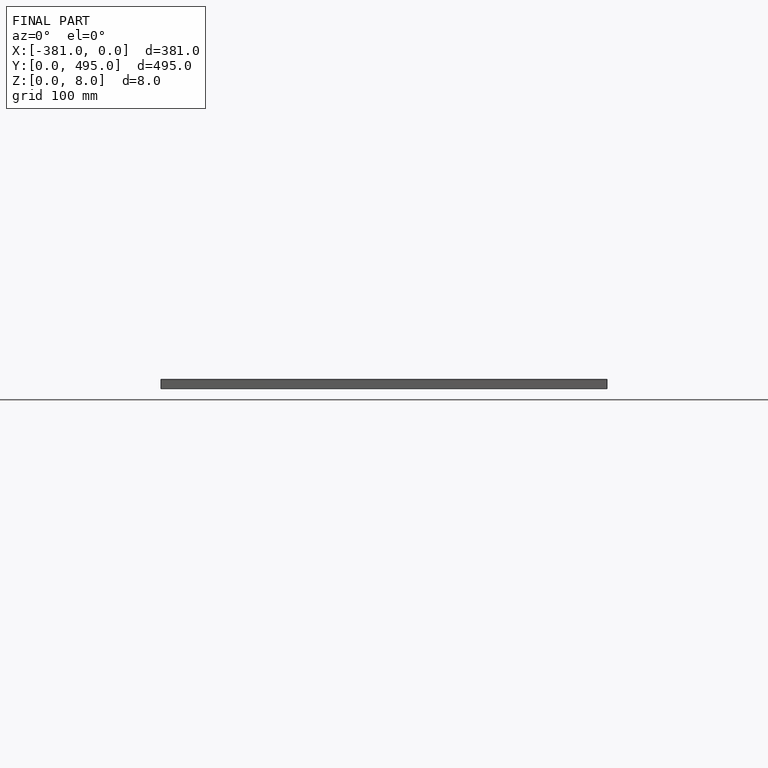
[diagram: finished part — front view with bounding-box wireframe]
